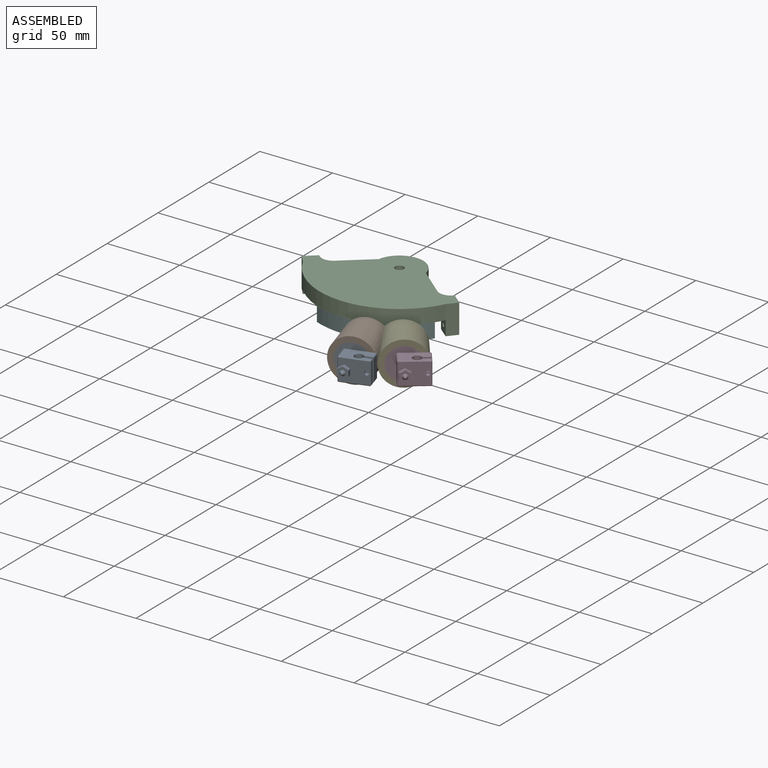
[diagram: assembled view]
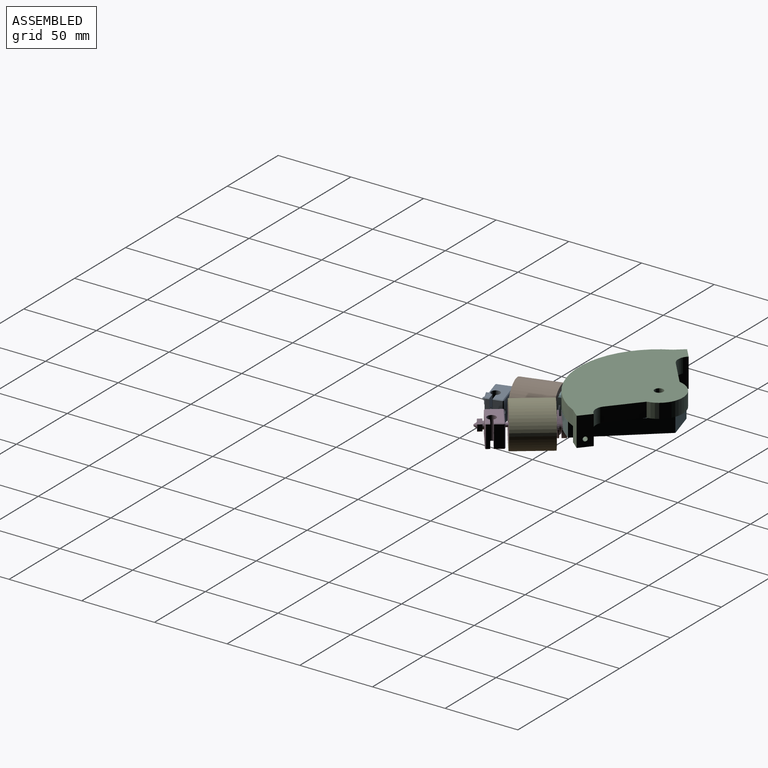
[diagram: assembled view, second angle]
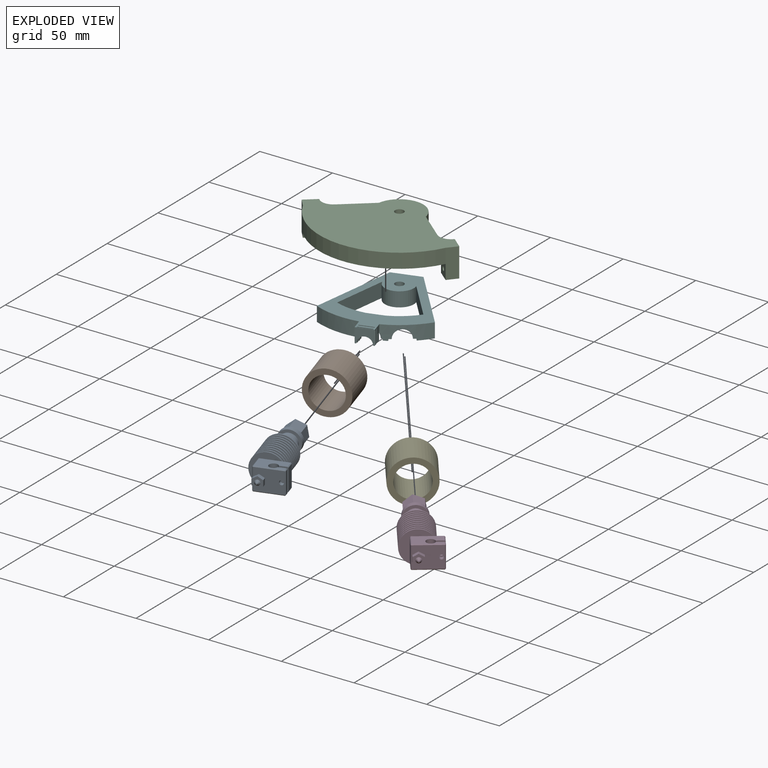
[diagram: exploded view]
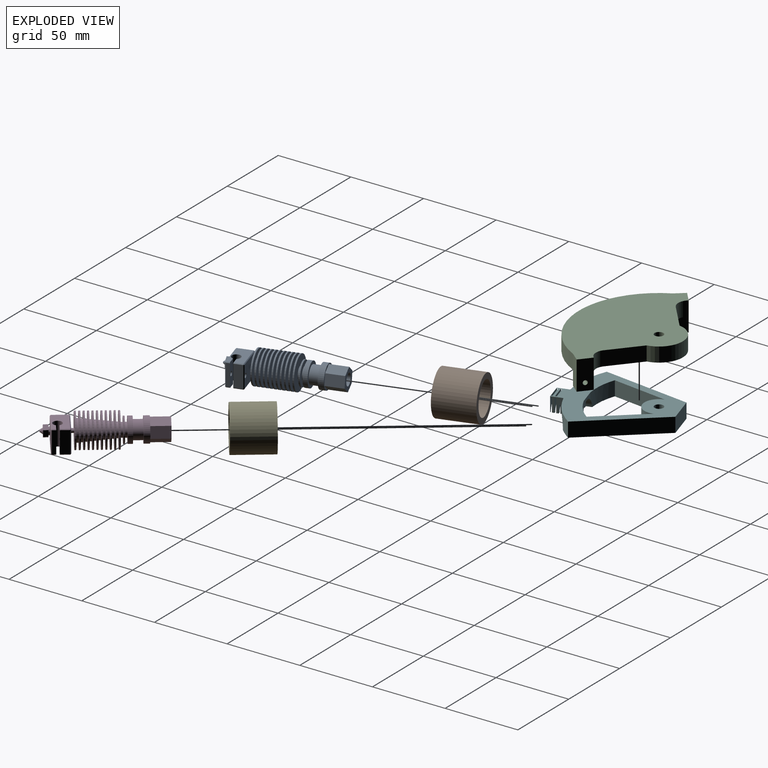
[diagram: exploded view, second angle]
ASSEMBLY  parts=6 mates=5
PART A: 118 faces, bbox 26.7x74.3x22.3 mm
  f0: plane 0.5x0.5mm, normal (0.58,0.58,0.58), area 0.2mm2, adj f18,f20,f21
  f1: plane 0.5x0.5mm, normal (-0.58,0.58,0.58), area 0.2mm2, adj f4,f17,f20
  f2: plane 0.5x0.5mm, normal (0.58,0.58,-0.58), area 0.2mm2, adj f6,f18,f19
  f3: plane 0.5x0.5mm, normal (-0.58,-0.58,0.58), area 0.2mm2, adj f4,f9,f16
  f4: plane 10.5x0.5mm, normal (-0.71,0,0.71), area 7.4mm2, adj f1,f3,f27,f51
  f5: plane 0.5x0.5mm, normal (-0.58,0.58,-0.58), area 0.2mm2, adj f6,f11,f17
  f6: plane 19x0.5mm, normal (0,0.71,-0.71), area 13.4mm2, adj f2,f5,f22,f25
  f7: plane 0.5x0.5mm, normal (0.58,-0.58,0.58), area 0.2mm2, adj f8,f9,f14
  f8: plane 2.5x0.5mm, normal (0.71,0,0.71), area 1.8mm2, adj f7,f50,f51,f52
  f9: plane 19x0.5mm, normal (0,-0.71,0.71), area 13.4mm2, adj f3,f7,f26,f51
  f10: plane 0.5x0.5mm, normal (-0.58,-0.58,-0.58), area 0.2mm2, adj f11,f15,f16
  f11: plane 10.5x0.5mm, normal (-0.71,0,-0.71), area 7.4mm2, adj f5,f10,f22,f27
  f12: plane 0.5x0.5mm, normal (0.58,-0.58,-0.58), area 0.2mm2, adj f13,f14,f15
  f13: plane 2.5x0.5mm, normal (0.71,0,-0.71), area 1.8mm2, adj f12,f22,f50,f52
  f14: plane 15x0.5mm, normal (0.71,-0.71,0), area 10.6mm2, adj f7,f12,f26,f52
  f15: plane 19x0.5mm, normal (0,-0.71,-0.71), area 13.4mm2, adj f10,f12,f22,f26
  f16: plane 15x0.5mm, normal (-0.71,-0.71,0), area 10.6mm2, adj f3,f10,f26,f27
  f17: plane 15x0.5mm, normal (-0.71,0.71,0), area 10.6mm2, adj f1,f5,f25,f27
  f18: plane 15x0.5mm, normal (0.71,0.71,0), area 10.6mm2, adj f0,f2,f23,f25
  f19: plane 6x0.5mm, normal (0.71,0,-0.71), area 4.2mm2, adj f2,f22,f23,f24
  f20: plane 19x0.5mm, normal (0,0.71,0.71), area 13.4mm2, adj f0,f1,f25,f51
  f21: plane 6x0.5mm, normal (0.71,0,0.71), area 4.2mm2, adj f0,f23,f24,f51
  f22: plane 19x10.5mm, normal (0,0,-1), area 150.5mm2, adj f6,f11,f13,f15,f19,f24,f43,f47
  f23: plane 15x6mm, normal (1,0,0), area 90mm2, adj f18,f19,f21,f24
  f24: plane 16x5.65mm, normal (0,-1,0), area 83mm2, adj f19,f21,f22,f23,f42,f49,f51
  f25: plane 19x15mm, normal (0,1,0), area 271.8mm2, adj f6,f17,f18,f20,f42,f53
  f26: plane 19x15mm, normal (0,-1,0), area 258.3mm2, adj f9,f14,f15,f16,f40,f41
  f27: plane 15x10.5mm, normal (-1,0,0), area 157.5mm2, adj f4,f11,f16,f17
  f28: cylinder r=0.2mm len=3mm, axis (0,1,0), area 3.8mm2, adj f29,f30
  f29: plane 0.4x0.4mm, normal (0,-1,0), area 0.1mm2, adj f28
  f30: plane 1x1mm, normal (0,-1,0), area 0.7mm2, adj f28,f31
  f31: cone r=1.9mm half-angle=35deg, axis (0,1,0), area 18.4mm2, adj f30,f39
  f32: plane 8.08x7mm, normal (0,1,0), area 22.8mm2, adj f33,f34,f35,f36,f37,f38,f40
  f33: plane 3.5x3mm, normal (0.5,0,-0.87), area 12.1mm2, adj f32,f34,f38,f39
  f34: plane 3.5x3mm, normal (-0.5,0,-0.87), area 12.1mm2, adj f32,f33,f35,f39
  f35: plane 4.04x3mm, normal (-1,0,0), area 12.1mm2, adj f32,f34,f36,f39
  f36: plane 3.5x3mm, normal (-0.5,0,0.87), area 12.1mm2, adj f32,f35,f37,f39
  f37: plane 3.5x3mm, normal (0.5,0,0.87), area 12.1mm2, adj f32,f36,f38,f39
  f38: plane 4.04x3mm, normal (1,0,0), area 12.1mm2, adj f32,f33,f37,f39
  f39: plane 8.08x7mm, normal (0,-1,0), area 31.1mm2, adj f31,f33,f34,f35,f36,f37,f38
  f40: cylinder r=2.5mm len=5mm, axis (0,-1,0), area 15.7mm2, adj f26,f32
  f41: cylinder r=1.5mm len=3mm, axis (0,-1,0), area 28.3mm2, adj f26,f50
  f42: cylinder r=1.5mm len=6.5mm, axis (0,-1,0), area 61.3mm2, adj f24,f25
  f43: cylinder r=1mm len=2mm, axis (0,0,1), area 12.6mm2, adj f22,f44
  f44: plane 2x2mm, normal (0,0,-1), area 1.3mm2, adj f43,f45
  f45: cylinder r=0.78mm len=2.45mm, axis (0,0,1), area 11.9mm2, adj f44,f46
  f46: plane 1.55x1.55mm, normal (0,0,-1), area 1.9mm2, adj f45
  f47: cylinder r=1.5mm len=3.45mm, axis (0,0,1), area 32.5mm2, adj f22,f48
  f48: plane 3x3mm, normal (0,0,-1), area 7.1mm2, adj f47
  f49: cylinder r=3.02mm len=16mm, axis (0,0,1), area 271.5mm2, adj f22,f24,f50,f51
  f50: plane 16x5.65mm, normal (0,1,0), area 83mm2, adj f8,f13,f22,f41,f49,f51,f52
  f51: plane 19x10.5mm, normal (0,0,1), area 160.7mm2, adj f4,f8,f9,f20,f21,f24,f49,f50
  f52: plane 15x2.5mm, normal (1,0,0), area 37.5mm2, adj f8,f13,f14,f50
  f53: cylinder r=1.4mm len=2.8mm, axis (0,-1,0), area 18.5mm2, adj f25,f108
  f54: plane 16x16mm, normal (0,1,0), area 54.7mm2, adj f55,f109,f110,f111,f112,f113,f114
  f55: cylinder r=8mm len=16mm, axis (0,-1,0), area 186mm2, adj f54,f56
  f56: plane 16x16mm, normal (0,-1,0), area 88mm2, adj f55,f57
  f57: cylinder r=6mm len=12mm, axis (0,-1,0), area 226.2mm2, adj f56,f58
  f58: plane 16x16mm, normal (0,1,0), area 88mm2, adj f57,f59
  f59: cylinder r=8mm len=16mm, axis (0,-1,0), area 150.8mm2, adj f58,f60
  f60: plane 16x16mm, normal (0,-1,0), area 137.4mm2, adj f59,f61
  f61: cylinder r=4.5mm len=9mm, axis (0,-1,0), area 42.4mm2, adj f60,f62
  f62: plane 16x16mm, normal (0,1,0), area 137.4mm2, adj f61,f63
  f63: cylinder r=8mm len=16mm, axis (0,-1,0), area 50.3mm2, adj f62,f64
  f64: plane 16x16mm, normal (0,-1,0), area 137.4mm2, adj f63,f65
  f65: cylinder r=4.5mm len=9mm, axis (0,-1,0), area 42.4mm2, adj f64,f66
  f66: plane 22.3x22.3mm, normal (0,1,0), area 327mm2, adj f65,f67
  f67: cylinder r=11.15mm len=22.3mm, axis (0,-1,0), area 70.1mm2, adj f66,f68
  f68: plane 22.3x22.3mm, normal (0,-1,0), area 319.7mm2, adj f67,f69
  f69: cylinder r=4.75mm len=9.5mm, axis (0,-1,0), area 44.8mm2, adj f68,f70
  f70: plane 22.3x22.3mm, normal (0,1,0), area 319.7mm2, adj f69,f71
  f71: cylinder r=11.15mm len=22.3mm, axis (0,-1,0), area 70.1mm2, adj f70,f72
  f72: plane 22.3x22.3mm, normal (0,-1,0), area 312mm2, adj f71,f73
  f73: cylinder r=5mm len=10mm, axis (0,-1,0), area 47.1mm2, adj f72,f74
  f74: plane 22.3x22.3mm, normal (0,1,0), area 312mm2, adj f73,f75
  f75: cylinder r=11.15mm len=22.3mm, axis (0,-1,0), area 70.1mm2, adj f74,f76
  f76: plane 22.3x22.3mm, normal (0,-1,0), area 304mm2, adj f75,f77
  f77: cylinder r=5.25mm len=10.5mm, axis (0,-1,0), area 49.5mm2, adj f76,f78
  f78: plane 22.3x22.3mm, normal (0,1,0), area 304mm2, adj f77,f79
  f79: cylinder r=11.15mm len=22.3mm, axis (0,-1,0), area 70.1mm2, adj f78,f80
  f80: plane 22.3x22.3mm, normal (0,-1,0), area 295.5mm2, adj f79,f81
  f81: cylinder r=5.5mm len=11mm, axis (0,-1,0), area 51.8mm2, adj f80,f82
  f82: plane 22.3x22.3mm, normal (0,1,0), area 295.5mm2, adj f81,f83
  f83: cylinder r=11.15mm len=22.3mm, axis (0,-1,0), area 70.1mm2, adj f82,f84
  f84: plane 22.3x22.3mm, normal (0,-1,0), area 286.7mm2, adj f83,f85
  f85: cylinder r=5.75mm len=11.5mm, axis (0,-1,0), area 54.2mm2, adj f84,f86
  f86: plane 22.3x22.3mm, normal (0,1,0), area 286.7mm2, adj f85,f87
  f87: cylinder r=11.15mm len=22.3mm, axis (0,-1,0), area 70.1mm2, adj f86,f88
  f88: plane 22.3x22.3mm, normal (0,-1,0), area 277.5mm2, adj f87,f89
  f89: cylinder r=6mm len=12mm, axis (0,-1,0), area 56.5mm2, adj f88,f90
  f90: plane 22.3x22.3mm, normal (0,1,0), area 277.5mm2, adj f89,f91
  f91: cylinder r=11.15mm len=22.3mm, axis (0,-1,0), area 70.1mm2, adj f90,f92
  f92: plane 22.3x22.3mm, normal (0,-1,0), area 267.9mm2, adj f91,f93
  f93: cylinder r=6.25mm len=12.5mm, axis (0,-1,0), area 58.9mm2, adj f92,f94
  f94: plane 22.3x22.3mm, normal (0,1,0), area 267.9mm2, adj f93,f95
  f95: cylinder r=11.15mm len=22.3mm, axis (0,-1,0), area 70.1mm2, adj f94,f96
  f96: plane 22.3x22.3mm, normal (0,-1,0), area 257.8mm2, adj f95,f97
  f97: cylinder r=6.5mm len=13mm, axis (0,-1,0), area 61.3mm2, adj f96,f98
  f98: plane 22.3x22.3mm, normal (0,1,0), area 257.8mm2, adj f97,f99
  f99: cylinder r=11.15mm len=22.3mm, axis (0,-1,0), area 70.1mm2, adj f98,f100
  f100: plane 22.3x22.3mm, normal (0,-1,0), area 247.4mm2, adj f99,f101
  f101: cylinder r=6.75mm len=13.5mm, axis (0,-1,0), area 63.6mm2, adj f100,f102
  f102: plane 22.3x22.3mm, normal (0,1,0), area 247.4mm2, adj f101,f103
  f103: cylinder r=11.15mm len=22.3mm, axis (0,-1,0), area 70.1mm2, adj f102,f104
  f104: plane 22.3x22.3mm, normal (0,-1,0), area 236.6mm2, adj f103,f105
  f105: cylinder r=7mm len=14mm, axis (0,-1,0), area 66mm2, adj f104,f106
  f106: plane 22.3x22.3mm, normal (0,1,0), area 236.6mm2, adj f105,f107
  f107: cylinder r=11.15mm len=22.3mm, axis (0,-1,0), area 70.1mm2, adj f106,f108
  f108: plane 22.3x22.3mm, normal (0,-1,0), area 384.4mm2, adj f53,f107
  f109: plane 12x7.41mm, normal (-0.99,0,-0.16), area 90.1mm2, adj f54,f110,f114,f115
  f110: plane 12x5.81mm, normal (-0.63,0,0.77), area 90.1mm2, adj f54,f109,f111,f115
  f111: plane 12x7.02mm, normal (0.35,0,0.94), area 90.1mm2, adj f54,f110,f112,f115
  f112: plane 12x7.41mm, normal (0.99,0,0.16), area 90.1mm2, adj f54,f111,f113,f115
  f113: plane 12x5.81mm, normal (0.63,0,-0.77), area 90.1mm2, adj f54,f112,f114,f115
  f114: plane 12x7.02mm, normal (-0.35,0,-0.94), area 90.1mm2, adj f54,f109,f113,f115
  f115: plane 14.81x14.04mm, normal (0,1,0), area 96.1mm2, adj f109,f110,f111,f112,f113,f114,f117
  f116: plane 8x8mm, normal (0,1,0), area 50.3mm2, adj f117
  f117: cylinder r=4mm len=18.5mm, axis (0,-1,0), area 465mm2, adj f115,f116
PART B: 4 faces, bbox 30x27x30 mm
  f0: cylinder r=11.15mm len=27mm, axis (0,-1,0), area 1891.6mm2, adj f2,f3
  f1: cylinder r=15mm len=30mm, axis (0,-1,0), area 2544.7mm2, adj f2,f3
  f2: plane 30x30mm, normal (0,1,0), area 316.3mm2, adj f0,f1
  f3: plane 30x30mm, normal (0,-1,0), area 316.3mm2, adj f0,f1
PART C: 21 faces, bbox 108.5x71.4x20 mm
  f0: plane 19.13x16.05mm, normal (0.64,0.77,0), area 249.8mm2, adj f3,f5,f6,f20
  f1: plane 19.13x16.05mm, normal (-0.64,0.77,0), area 249.8mm2, adj f3,f5,f6,f13
  f2: cylinder r=55mm len=98.21mm, axis (0,0,-1), area 1214mm2, adj f5,f6,f9,f15
  f3: cylinder r=16.43mm len=32.37mm, axis (0,0,-1), area 458.9mm2, adj f0,f1,f5,f6
  f4: cylinder r=3mm len=10mm, axis (0,0,-1), area 188.5mm2, adj f5,f6
  f5: plane 108.5x71.43mm, normal (0,0,1), area 4415.8mm2, adj f0,f1,f2,f3,f4,f9,f11,f13
  f6: plane 98.21x71.43mm, normal (0,0,-1), area 4255.8mm2, adj f0,f1,f2,f3,f4,f7,f12,f13
  f7: plane 10x6.13mm, normal (0.77,0.64,0), area 80mm2, adj f6,f8,f11,f12
  f8: plane 12.8x12.56mm, normal (0,0,-1), area 80mm2, adj f7,f9,f11,f12
  f9: plane 20x6.13mm, normal (-0.77,-0.64,0), area 160mm2, adj f2,f5,f8,f11,f12
  f10: cylinder r=1.5mm len=8.06mm, axis (0.64,-0.77,0), area 75.4mm2, adj f11,f12
  f11: plane 20x7.66mm, normal (-0.64,0.77,0), area 192.9mm2, adj f5,f7,f8,f9,f10,f13
  f12: plane 10x7.66mm, normal (0.64,-0.77,0), area 92.9mm2, adj f6,f7,f8,f9,f10
  f13: cylinder r=8mm len=11.27mm, axis (0,0,-1), area 125.7mm2, adj f1,f5,f6,f11
  f14: plane 10x6.13mm, normal (-0.77,0.64,0), area 80mm2, adj f6,f16,f18,f19
  f15: plane 20x6.13mm, normal (0.77,-0.64,0), area 160mm2, adj f2,f5,f16,f18,f19
  f16: plane 12.8x12.56mm, normal (0,0,-1), area 80mm2, adj f14,f15,f18,f19
  f17: cylinder r=1.5mm len=8.06mm, axis (-0.64,-0.77,0), area 75.4mm2, adj f18,f19
  f18: plane 20x7.66mm, normal (0.64,0.77,0), area 192.9mm2, adj f5,f14,f15,f16,f17,f20
  f19: plane 10x7.66mm, normal (-0.64,-0.77,0), area 92.9mm2, adj f6,f14,f15,f16,f17
  f20: cylinder r=8mm len=11.27mm, axis (0,0,1), area 125.7mm2, adj f0,f5,f6,f18
PART D: same geometry as A
PART E: same geometry as B
PART F: 52 faces, bbox 70x75.7x10 mm
  f0: plane 70x67.46mm, normal (0,0,-1), area 1327.6mm2, adj f9,f12,f13,f14,f15,f16,f21,f22
  f1: plane 1.5x1.5mm, normal (0,0,-1), area 2.3mm2, adj f18,f36,f40,f49
  f2: plane 1.5x1.5mm, normal (0,0,-1), area 2.3mm2, adj f20,f36,f40,f49
  f3: plane 1.5x1.5mm, normal (0,0,-1), area 2.3mm2, adj f18,f38,f46,f48
  f4: plane 1.5x1.5mm, normal (0,0,-1), area 2.3mm2, adj f20,f38,f46,f48
  f5: plane 9.14x6.15mm, normal (0,0,-1), area 38mm2, adj f23,f26,f27,f28,f41,f42,f43,f44
  f6: plane 1x0.13mm, normal (0,0,-1), area 0.1mm2, adj f18,f19,f30,f32
  f7: plane 1x0.13mm, normal (0,0,-1), area 0.1mm2, adj f19,f20,f30,f32
  f8: plane 1.5x1.25mm, normal (0,0,-1), area 1.9mm2, adj f18,f31,f35,f50
  f9: plane 20x10mm, normal (0,1,0), area 200mm2, adj f0,f10,f14,f15
  f10: plane 75.67x70mm, normal (0,0,1), area 1776.7mm2, adj f9,f12,f13,f14,f15,f16,f17,f18
  f11: plane 1.5x1.25mm, normal (0,0,-1), area 1.9mm2, adj f20,f31,f35,f50
  f12: cylinder r=10mm len=20mm, axis (0,0,-1), area 314.2mm2, adj f0,f10,f24,f25
  f13: cylinder r=3mm len=10mm, axis (0,0,-1), area 188.5mm2, adj f0,f10
  f14: plane 55.47x25mm, normal (-0.91,0.41,0), area 608.4mm2, adj f0,f9,f10,f21
  f15: plane 55.47x25mm, normal (0.91,0.41,0), area 608.4mm2, adj f0,f9,f10,f23
  f16: cylinder r=43.05mm len=19.6mm, axis (0,0,-1), area 206.6mm2, adj f0,f10,f17,f24,f41
  f17: plane 12x4.71mm, normal (0,1,0), area 34mm2, adj f10,f16,f22,f41
  f18: plane 10x7.96mm, normal (-1,0,0), area 53.8mm2, adj f1,f3,f6,f8,f10,f19,f21,f30
  f19: plane 12x10mm, normal (0,-1,0), area 80.7mm2, adj f6,f7,f10,f18,f20,f32
  f20: plane 10x7.96mm, normal (1,0,0), area 53.8mm2, adj f2,f4,f7,f10,f11,f19,f23,f29
  f21: cylinder r=55mm len=29mm, axis (0,0,-1), area 311.9mm2, adj f0,f10,f14,f18,f45
  f22: cylinder r=43.05mm len=19.6mm, axis (0,0,-1), area 107.7mm2, adj f0,f10,f17,f25,f41,f42
  f23: cylinder r=55mm len=29mm, axis (0,0,-1), area 211.1mm2, adj f0,f5,f10,f15,f20,f26,f45
  f24: plane 34.61x15.6mm, normal (0.91,-0.41,0), area 379.6mm2, adj f0,f10,f12,f16
  f25: plane 34.61x15.6mm, normal (-0.91,-0.41,0), area 379.6mm2, adj f0,f10,f12,f22
  f26: cylinder r=8mm len=16.06mm, axis (0.34,-0.94,0), area 68.1mm2, adj f0,f5,f23,f27
  f27: plane 15.04x8mm, normal (0.34,-0.94,0), area 44mm2, adj f0,f5,f26,f28
  f28: cylinder r=6mm len=13.33mm, axis (0.34,-0.94,0), area 113.1mm2, adj f0,f5,f27,f51
  f29: cylinder r=11.15mm len=1.07mm, axis (0,-1,0), area 1.2mm2, adj f10,f20,f30,f31
  f30: plane 12x10mm, normal (0,1,0), area 80.1mm2, adj f6,f7,f10,f18,f20,f29,f32,f33
  f31: plane 12x10mm, normal (0,-1,0), area 83.9mm2, adj f8,f10,f11,f18,f20,f29,f33,f50
  f32: cylinder r=5mm len=10mm, axis (0,-1,0), area 2mm2, adj f6,f7,f19,f30
  f33: cylinder r=11.15mm len=1.07mm, axis (0,-1,0), area 1.2mm2, adj f10,f18,f30,f31
  f34: cylinder r=11.15mm len=1.07mm, axis (0,-1,0), area 1.2mm2, adj f10,f20,f35,f36
  f35: plane 12x10mm, normal (0,1,0), area 83.9mm2, adj f8,f10,f11,f18,f20,f34,f37,f50
  f36: plane 12x10mm, normal (0,-1,0), area 87.6mm2, adj f1,f2,f10,f18,f20,f34,f37,f49
  f37: cylinder r=11.15mm len=1.07mm, axis (0,-1,0), area 1.2mm2, adj f10,f18,f35,f36
  f38: plane 12x8mm, normal (0,-1,0), area 54.2mm2, adj f3,f4,f18,f20,f39,f48
  f39: cylinder r=8mm len=12mm, axis (0,-1,0), area 13.6mm2, adj f18,f20,f38,f40
  f40: plane 12x8mm, normal (0,1,0), area 54.2mm2, adj f1,f2,f18,f20,f39,f49
  f41: cylinder r=8mm len=16mm, axis (0,-1,0), area 81.2mm2, adj f0,f5,f16,f17,f22,f42,f43
  f42: cylinder r=8mm len=16.3mm, axis (0.34,-0.94,0), area 77.6mm2, adj f0,f5,f22,f41,f51
  f43: plane 16x8mm, normal (0,1,0), area 44mm2, adj f0,f5,f41,f44
  f44: cylinder r=6mm len=12mm, axis (0,-1,0), area 113.1mm2, adj f0,f5,f43,f47
  f45: cylinder r=8mm len=16mm, axis (0,-1,0), area 69.7mm2, adj f0,f5,f18,f20,f21,f23,f46,f47
  f46: plane 12x8mm, normal (0,1,0), area 54.2mm2, adj f3,f4,f18,f20,f45,f48
  f47: plane 16x8mm, normal (0,-1,0), area 44mm2, adj f0,f5,f44,f45
  f48: cylinder r=4.5mm len=9mm, axis (0,-1,0), area 21.2mm2, adj f3,f4,f38,f46
  f49: cylinder r=4.5mm len=9mm, axis (0,-1,0), area 21.2mm2, adj f1,f2,f36,f40
  f50: cylinder r=4.75mm len=9.5mm, axis (0,-1,0), area 22.4mm2, adj f8,f11,f31,f35
  f51: plane 15.04x8mm, normal (-0.34,0.94,0), area 44mm2, adj f0,f5,f28,f42
PLACE A rot(axis=(0,0,1),16.8deg) t=(18.2,-59,33.31)mm
PLACE B rot(axis=(0,0,1),16.8deg) t=(18.2,-59,33.31)mm
PLACE C t=(-0.19,-61.72,33.31)mm fixed
PLACE D rot(axis=(0,0,1),36.8deg) t=(37.93,-49.03,33.31)mm
PLACE E rot(axis=(0,0,1),36.8deg) t=(37.93,-49.03,33.31)mm
PLACE F rot(axis=(0,0,1),16.8deg) t=(18.2,-59,33.31)mm
MATE fastened B.f1 <-> A.f53  axis (0.29,-0.96,0) through (24.37,-79.44,33.31)mm
MATE fastened E.f0 <-> D.f28  axis (0.6,-0.8,0) through (50.72,-66.13,33.31)mm
MATE fastened D.f53 <-> F.f28  axis (0.6,-0.8,0) through (27.36,-34.9,33.31)mm
MATE revolute C.f4 <-> F.f12  axis (0,0,-1) through (-0.19,1.93,43.31)mm
MATE fastened A.f53 <-> F.f29  axis (-0.29,0.96,0) through (14.84,-47.85,33.31)mm
